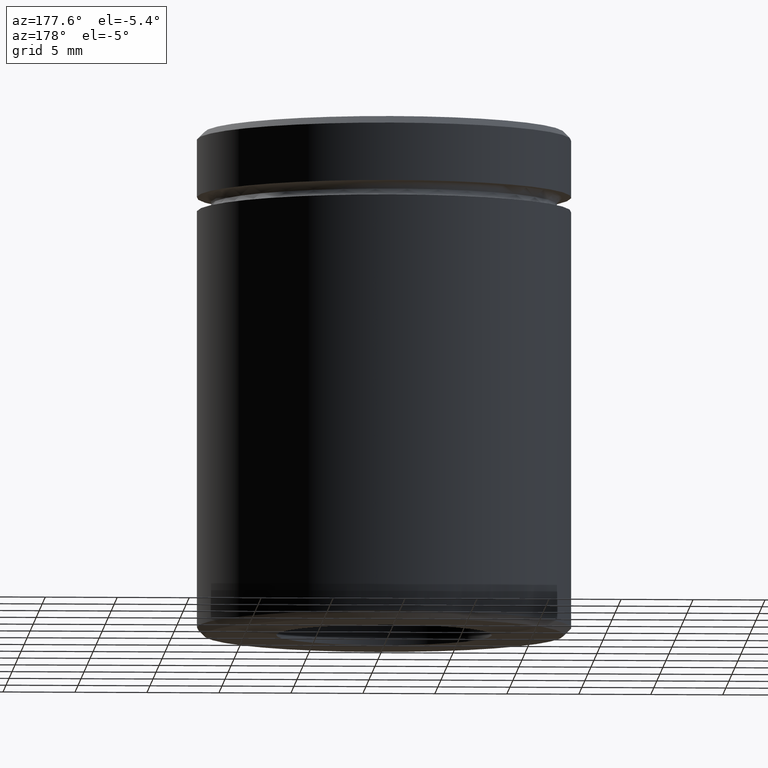
[diagram: clean part render]
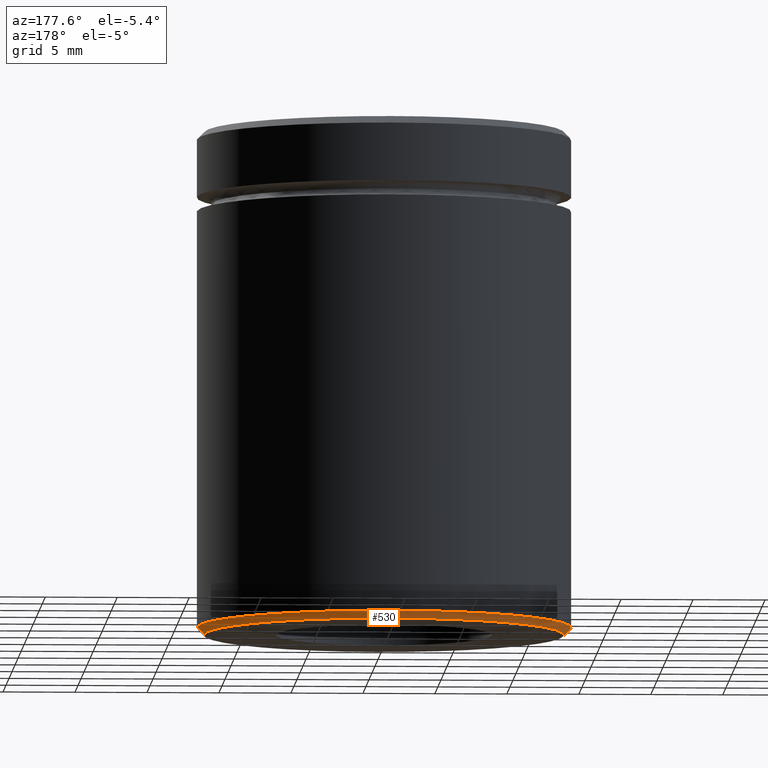
[diagram: same view with one face highlighted and labeled with its STEP entity id]
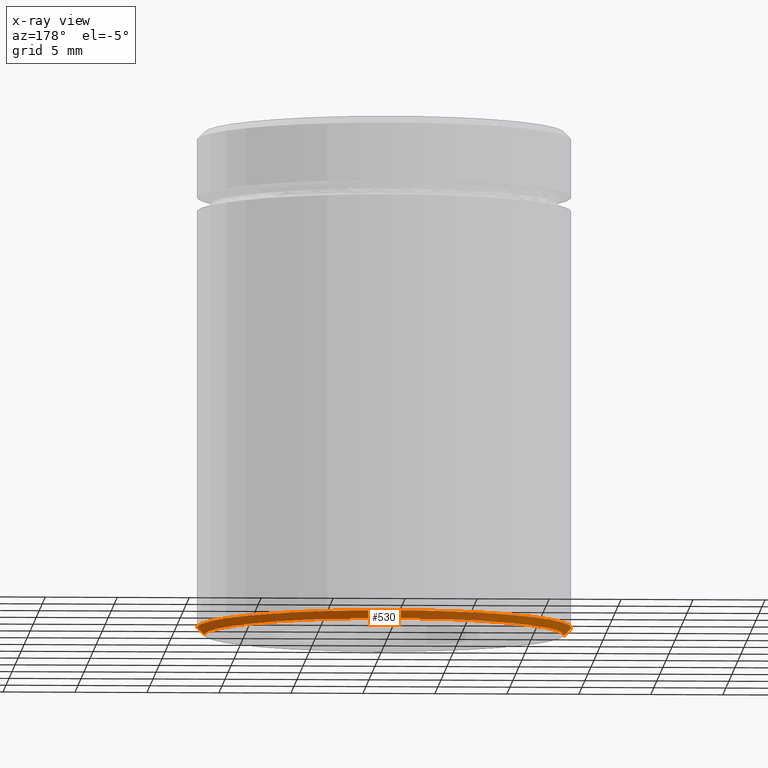
[diagram: x-ray of the same camera — body ghosted, the highlighted face saturated]
A machine part, auxiliary view. The second image highlights one B-rep face of the part: STEP entity #530.
The next image is the same camera in x-ray: the body ghosted, the highlighted face saturated — about 0% of this face is hidden behind the body in this view.
In plain terms, the highlighted conical surface has half-angle 45 deg.
Its self-contained STEP definition (entity closure, byte-faithful):
#5 = CARTESIAN_POINT ( 'NONE',  ( -13.00000000000000000, 1.592040838891559095E-15, -34.49999999999999289 ) ) ;
#32 = EDGE_CURVE ( 'NONE', #37, #316, #491, .T. ) ;
#37 = VERTEX_POINT ( 'NONE', #545 ) ;
#49 = CIRCLE ( 'NONE', #384, 13.00000000000000000 ) ;
#72 = EDGE_LOOP ( 'NONE', ( #83, #225, #434, #307 ) ) ;
#73 = DIRECTION ( 'NONE',  ( -1.000000000000000000, 0.000000000000000000, 0.000000000000000000 ) ) ;
#83 = ORIENTED_EDGE ( 'NONE', *, *, #32, .F. ) ;
#91 = CARTESIAN_POINT ( 'NONE',  ( 13.00000000000000000, 0.000000000000000000, -34.49999999999999289 ) ) ;
#96 = VERTEX_POINT ( 'NONE', #159 ) ;
#107 = DIRECTION ( 'NONE',  ( -0.7071067811865487940, 8.659560562354950115E-17, 0.7071067811865463515 ) ) ;
#159 = CARTESIAN_POINT ( 'NONE',  ( 13.00000000000000000, 0.000000000000000000, -34.49999999999999289 ) ) ;
#169 = VERTEX_POINT ( 'NONE', #5 ) ;
#175 = VECTOR ( 'NONE', #266, 1000.000000000000000 ) ;
#186 = LINE ( 'NONE', #240, #199 ) ;
#199 = VECTOR ( 'NONE', #107, 1000.000000000000000 ) ;
#217 = LINE ( 'NONE', #91, #175 ) ;
#220 = EDGE_CURVE ( 'NONE', #316, #96, #217, .T. ) ;
#225 = ORIENTED_EDGE ( 'NONE', *, *, #363, .T. ) ;
#240 = CARTESIAN_POINT ( 'NONE',  ( -13.00000000000000000, 1.592040838891559095E-15, -34.49999999999999289 ) ) ;
#243 = AXIS2_PLACEMENT_3D ( 'NONE', #367, #459, #270 ) ;
#249 = DIRECTION ( 'NONE',  ( -0.000000000000000000, -0.000000000000000000, 1.000000000000000000 ) ) ;
#266 = DIRECTION ( 'NONE',  ( 0.7071067811865487940, 0.000000000000000000, 0.7071067811865463515 ) ) ;
#270 = DIRECTION ( 'NONE',  ( -1.000000000000000000, 0.000000000000000000, 0.000000000000000000 ) ) ;
#281 = CARTESIAN_POINT ( 'NONE',  ( 12.49999999999999112, 0.000000000000000000, -35.00000000000000000 ) ) ;
#298 = DIRECTION ( 'NONE',  ( -0.000000000000000000, -0.000000000000000000, 1.000000000000000000 ) ) ;
#300 = FACE_OUTER_BOUND ( 'NONE', #72, .T. ) ;
#307 = ORIENTED_EDGE ( 'NONE', *, *, #220, .F. ) ;
#316 = VERTEX_POINT ( 'NONE', #281 ) ;
#363 = EDGE_CURVE ( 'NONE', #37, #169, #186, .T. ) ;
#367 = CARTESIAN_POINT ( 'NONE',  ( 0.000000000000000000, 0.000000000000000000, -35.00000000000000000 ) ) ;
#384 = AXIS2_PLACEMENT_3D ( 'NONE', #473, #298, #73 ) ;
#387 = CARTESIAN_POINT ( 'NONE',  ( 0.000000000000000000, 0.000000000000000000, -34.49999999999999289 ) ) ;
#392 = CONICAL_SURFACE ( 'NONE', #477, 13.00000000000000000, 0.7853981633974500554 ) ;
#434 = ORIENTED_EDGE ( 'NONE', *, *, #515, .F. ) ;
#459 = DIRECTION ( 'NONE',  ( 0.000000000000000000, 0.000000000000000000, -1.000000000000000000 ) ) ;
#473 = CARTESIAN_POINT ( 'NONE',  ( 0.000000000000000000, 0.000000000000000000, -34.49999999999999289 ) ) ;
#477 = AXIS2_PLACEMENT_3D ( 'NONE', #387, #249, #559 ) ;
#491 = CIRCLE ( 'NONE', #243, 12.49999999999999112 ) ;
#515 = EDGE_CURVE ( 'NONE', #96, #169, #49, .T. ) ;
#530 = ADVANCED_FACE ( 'NONE', ( #300 ), #392, .T. ) ;
#545 = CARTESIAN_POINT ( 'NONE',  ( -12.49999999999999112, 1.561424668912874519E-15, -35.00000000000000000 ) ) ;
#559 = DIRECTION ( 'NONE',  ( 1.000000000000000000, 0.000000000000000000, 0.000000000000000000 ) ) ;